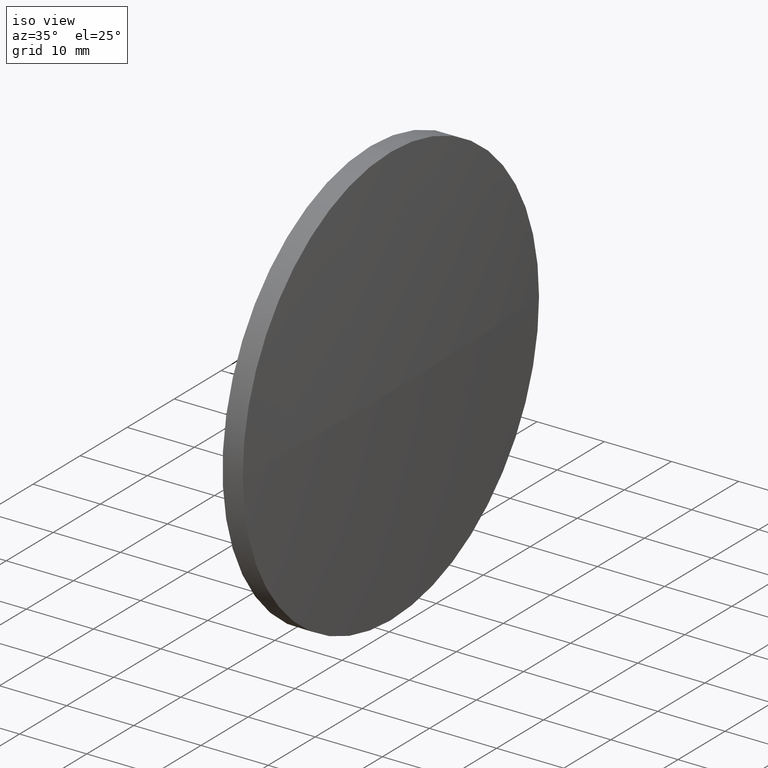
[diagram: clean part render]
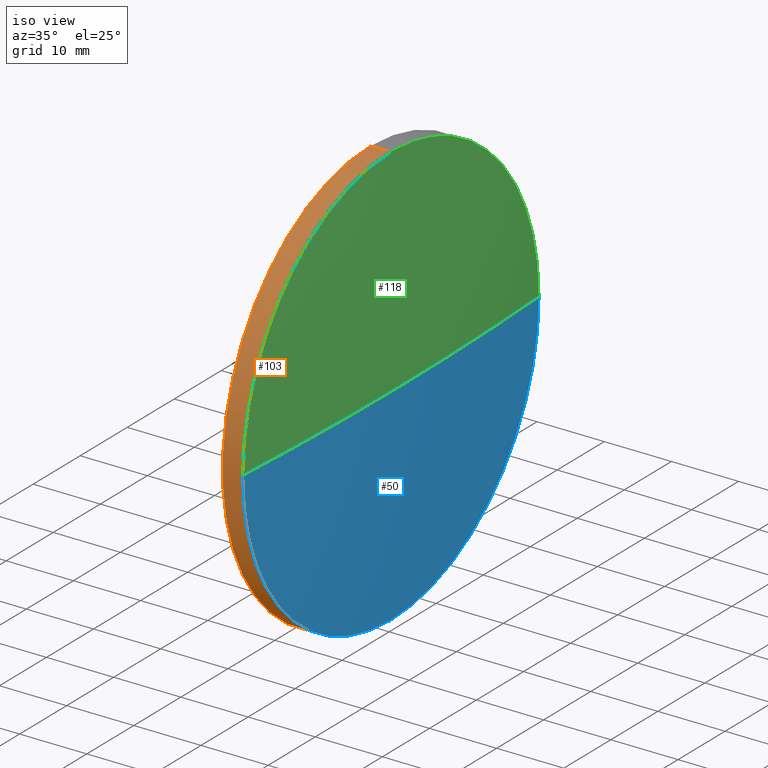
[diagram: same view with three faces highlighted in distinct colors, each labeled with its STEP entity id]
A machine part, iso view with three faces highlighted in distinct colors.
Their STEP definitions:

[orange] entity #103 — the highlighted cylindrical surface (partial cylindrical patch) has radius 31.5 mm, axis along (-1, -0, -0).
#2 = EDGE_CURVE ( 'NONE', #35, #17, #63, .T. ) ;
#6 = ORIENTED_EDGE ( 'NONE', *, *, #168, .F. ) ;
#11 = LINE ( 'NONE', #47, #14 ) ;
#14 = VECTOR ( 'NONE', #99, 1000.000000000000000 ) ;
#16 = DIRECTION ( 'NONE',  ( -1.000000000000000000, -0.0000000000000000000, -0.0000000000000000000 ) ) ;
#17 = VERTEX_POINT ( 'NONE', #80 ) ;
#22 = LINE ( 'NONE', #177, #171 ) ;
#26 = DIRECTION ( 'NONE',  ( -1.000000000000000000, -0.0000000000000000000, -0.0000000000000000000 ) ) ;
#31 = ORIENTED_EDGE ( 'NONE', *, *, #2, .F. ) ;
#35 = VERTEX_POINT ( 'NONE', #61 ) ;
#41 = CARTESIAN_POINT ( 'NONE',  ( 229.8933010013870400, 130.5185814569561000, 31.50000000000000000 ) ) ;
#47 = CARTESIAN_POINT ( 'NONE',  ( 218.1236667371545400, 130.5185814569561000, -31.50000000000000000 ) ) ;
#55 = AXIS2_PLACEMENT_3D ( 'NONE', #148, #182, #128 ) ;
#57 = ORIENTED_EDGE ( 'NONE', *, *, #156, .T. ) ;
#58 = AXIS2_PLACEMENT_3D ( 'NONE', #66, #16, #74 ) ;
#59 = CARTESIAN_POINT ( 'NONE',  ( 226.8933010013870400, 130.5185814569561000, 0.0000000000000000000 ) ) ;
#61 = CARTESIAN_POINT ( 'NONE',  ( 226.8933010013870400, 130.5185814569561000, -31.50000000000000000 ) ) ;
#63 = CIRCLE ( 'NONE', #71, 31.50000000000000000 ) ;
#66 = CARTESIAN_POINT ( 'NONE',  ( 229.8933010013870400, 130.5185814569561000, 0.0000000000000000000 ) ) ;
#70 = CIRCLE ( 'NONE', #58, 31.50000000000000000 ) ;
#71 = AXIS2_PLACEMENT_3D ( 'NONE', #59, #26, #90 ) ;
#73 = ORIENTED_EDGE ( 'NONE', *, *, #181, .T. ) ;
#74 = DIRECTION ( 'NONE',  ( 0.0000000000000000000, 0.0000000000000000000, 1.000000000000000000 ) ) ;
#76 = DIRECTION ( 'NONE',  ( -1.000000000000000000, -0.0000000000000000000, -0.0000000000000000000 ) ) ;
#80 = CARTESIAN_POINT ( 'NONE',  ( 226.8933010013870400, 130.5185814569561000, 31.50000000000000000 ) ) ;
#82 = VERTEX_POINT ( 'NONE', #41 ) ;
#84 = CARTESIAN_POINT ( 'NONE',  ( 229.8933010013870400, 99.01858145695655400, 0.0000000000000000000 ) ) ;
#85 = EDGE_CURVE ( 'NONE', #82, #17, #22, .T. ) ;
#88 = CIRCLE ( 'NONE', #136, 31.50000000000000000 ) ;
#90 = DIRECTION ( 'NONE',  ( 0.0000000000000000000, 0.0000000000000000000, 1.000000000000000000 ) ) ;
#96 = CARTESIAN_POINT ( 'NONE',  ( 229.8933010013870400, 130.5185814569561000, -31.50000000000000000 ) ) ;
#98 = CARTESIAN_POINT ( 'NONE',  ( 229.8933010013870400, 130.5185814569561000, 0.0000000000000000000 ) ) ;
#99 = DIRECTION ( 'NONE',  ( -1.000000000000000000, -0.0000000000000000000, -0.0000000000000000000 ) ) ;
#101 = VERTEX_POINT ( 'NONE', #96 ) ;
#103 = ADVANCED_FACE ( 'NONE', ( #173 ), #165, .T. ) ;
#128 = DIRECTION ( 'NONE',  ( 0.0000000000000000000, 0.0000000000000000000, 1.000000000000000000 ) ) ;
#135 = ORIENTED_EDGE ( 'NONE', *, *, #85, .T. ) ;
#136 = AXIS2_PLACEMENT_3D ( 'NONE', #98, #76, #180 ) ;
#148 = CARTESIAN_POINT ( 'NONE',  ( 218.1236667371545400, 130.5185814569561000, 0.0000000000000000000 ) ) ;
#149 = VERTEX_POINT ( 'NONE', #84 ) ;
#156 = EDGE_CURVE ( 'NONE', #101, #149, #70, .T. ) ;
#161 = DIRECTION ( 'NONE',  ( -1.000000000000000000, -0.0000000000000000000, -0.0000000000000000000 ) ) ;
#164 = EDGE_LOOP ( 'NONE', ( #6, #57, #73, #135, #31 ) ) ;
#165 = CYLINDRICAL_SURFACE ( 'NONE', #55, 31.50000000000000000 ) ;
#168 = EDGE_CURVE ( 'NONE', #101, #35, #11, .T. ) ;
#171 = VECTOR ( 'NONE', #161, 1000.000000000000000 ) ;
#173 = FACE_OUTER_BOUND ( 'NONE', #164, .T. ) ;
#177 = CARTESIAN_POINT ( 'NONE',  ( 218.1236667371545400, 130.5185814569561000, 31.50000000000000000 ) ) ;
#180 = DIRECTION ( 'NONE',  ( 0.0000000000000000000, 0.0000000000000000000, 1.000000000000000000 ) ) ;
#181 = EDGE_CURVE ( 'NONE', #149, #82, #88, .T. ) ;
#182 = DIRECTION ( 'NONE',  ( -1.000000000000000000, -0.0000000000000000000, -0.0000000000000000000 ) ) ;

[blue] entity #50 — the highlighted spherical surface has radius 517.277 mm.
#3 = CARTESIAN_POINT ( 'NONE',  ( -286.4235739986086200, 130.5185814569565500, 0.0000000000000000000 ) ) ;
#4 = ORIENTED_EDGE ( 'NONE', *, *, #170, .F. ) ;
#13 = DIRECTION ( 'NONE',  ( 0.0000000000000000000, 0.0000000000000000000, 1.000000000000000000 ) ) ;
#16 = DIRECTION ( 'NONE',  ( -1.000000000000000000, -0.0000000000000000000, -0.0000000000000000000 ) ) ;
#18 = DIRECTION ( 'NONE',  ( -1.000000000000000000, -0.0000000000000000000, -0.0000000000000000000 ) ) ;
#19 = EDGE_CURVE ( 'NONE', #186, #34, #21, .T. ) ;
#21 = CIRCLE ( 'NONE', #175, 517.2768749999955800 ) ;
#25 = AXIS2_PLACEMENT_3D ( 'NONE', #64, #18, #147 ) ;
#28 = AXIS2_PLACEMENT_3D ( 'NONE', #140, #13, #43 ) ;
#34 = VERTEX_POINT ( 'NONE', #92 ) ;
#36 = AXIS2_PLACEMENT_3D ( 'NONE', #109, #121, #42 ) ;
#40 = CIRCLE ( 'NONE', #25, 31.50000000000000000 ) ;
#42 = DIRECTION ( 'NONE',  ( -1.000000000000000000, 0.0000000000000000000, 0.0000000000000000000 ) ) ;
#43 = DIRECTION ( 'NONE',  ( 0.0000000000000000000, -1.000000000000000000, 0.0000000000000000000 ) ) ;
#44 = ORIENTED_EDGE ( 'NONE', *, *, #19, .F. ) ;
#48 = CARTESIAN_POINT ( 'NONE',  ( 230.8533010013870200, 130.5185814569565300, 0.0000000000000000000 ) ) ;
#50 = ADVANCED_FACE ( 'NONE', ( #146 ), #95, .T. ) ;
#52 = EDGE_CURVE ( 'NONE', #186, #149, #53, .T. ) ;
#53 = CIRCLE ( 'NONE', #36, 517.2768749999955800 ) ;
#58 = AXIS2_PLACEMENT_3D ( 'NONE', #66, #16, #74 ) ;
#64 = CARTESIAN_POINT ( 'NONE',  ( 229.8933010013870400, 130.5185814569561000, 0.0000000000000000000 ) ) ;
#66 = CARTESIAN_POINT ( 'NONE',  ( 229.8933010013870400, 130.5185814569561000, 0.0000000000000000000 ) ) ;
#70 = CIRCLE ( 'NONE', #58, 31.50000000000000000 ) ;
#74 = DIRECTION ( 'NONE',  ( 0.0000000000000000000, 0.0000000000000000000, 1.000000000000000000 ) ) ;
#78 = EDGE_LOOP ( 'NONE', ( #44, #183, #126, #4 ) ) ;
#84 = CARTESIAN_POINT ( 'NONE',  ( 229.8933010013870400, 99.01858145695655400, 0.0000000000000000000 ) ) ;
#92 = CARTESIAN_POINT ( 'NONE',  ( 229.8933010013870400, 162.0185814569561000, 3.857637417314109000E-015 ) ) ;
#95 = SPHERICAL_SURFACE ( 'NONE', #28, 517.2768749999955800 ) ;
#96 = CARTESIAN_POINT ( 'NONE',  ( 229.8933010013870400, 130.5185814569561000, -31.50000000000000000 ) ) ;
#101 = VERTEX_POINT ( 'NONE', #96 ) ;
#109 = CARTESIAN_POINT ( 'NONE',  ( -286.4235739986086200, 130.5185814569565500, 0.0000000000000000000 ) ) ;
#120 = DIRECTION ( 'NONE',  ( 0.0000000000000000000, -1.224646799147353200E-016, 1.000000000000000000 ) ) ;
#121 = DIRECTION ( 'NONE',  ( 0.0000000000000000000, 0.0000000000000000000, -1.000000000000000000 ) ) ;
#126 = ORIENTED_EDGE ( 'NONE', *, *, #156, .F. ) ;
#140 = CARTESIAN_POINT ( 'NONE',  ( -286.4235739986086200, 130.5185814569565500, 0.0000000000000000000 ) ) ;
#146 = FACE_OUTER_BOUND ( 'NONE', #78, .T. ) ;
#147 = DIRECTION ( 'NONE',  ( 0.0000000000000000000, 0.0000000000000000000, 1.000000000000000000 ) ) ;
#149 = VERTEX_POINT ( 'NONE', #84 ) ;
#156 = EDGE_CURVE ( 'NONE', #101, #149, #70, .T. ) ;
#158 = DIRECTION ( 'NONE',  ( 0.0000000000000000000, -1.000000000000000000, -1.224646799147353500E-016 ) ) ;
#170 = EDGE_CURVE ( 'NONE', #34, #101, #40, .T. ) ;
#175 = AXIS2_PLACEMENT_3D ( 'NONE', #3, #120, #158 ) ;
#183 = ORIENTED_EDGE ( 'NONE', *, *, #52, .T. ) ;
#186 = VERTEX_POINT ( 'NONE', #48 ) ;

[green] entity #118 — the highlighted spherical surface has radius 517.277 mm.
#3 = CARTESIAN_POINT ( 'NONE',  ( -286.4235739986086200, 130.5185814569565500, 0.0000000000000000000 ) ) ;
#8 = ORIENTED_EDGE ( 'NONE', *, *, #60, .F. ) ;
#12 = DIRECTION ( 'NONE',  ( -1.000000000000000000, -0.0000000000000000000, -0.0000000000000000000 ) ) ;
#19 = EDGE_CURVE ( 'NONE', #186, #34, #21, .T. ) ;
#21 = CIRCLE ( 'NONE', #175, 517.2768749999955800 ) ;
#23 = FACE_OUTER_BOUND ( 'NONE', #137, .T. ) ;
#24 = ORIENTED_EDGE ( 'NONE', *, *, #19, .T. ) ;
#34 = VERTEX_POINT ( 'NONE', #92 ) ;
#36 = AXIS2_PLACEMENT_3D ( 'NONE', #109, #121, #42 ) ;
#41 = CARTESIAN_POINT ( 'NONE',  ( 229.8933010013870400, 130.5185814569561000, 31.50000000000000000 ) ) ;
#42 = DIRECTION ( 'NONE',  ( -1.000000000000000000, 0.0000000000000000000, 0.0000000000000000000 ) ) ;
#48 = CARTESIAN_POINT ( 'NONE',  ( 230.8533010013870200, 130.5185814569565300, 0.0000000000000000000 ) ) ;
#52 = EDGE_CURVE ( 'NONE', #186, #149, #53, .T. ) ;
#53 = CIRCLE ( 'NONE', #36, 517.2768749999955800 ) ;
#56 = AXIS2_PLACEMENT_3D ( 'NONE', #123, #12, #79 ) ;
#60 = EDGE_CURVE ( 'NONE', #82, #34, #172, .T. ) ;
#65 = DIRECTION ( 'NONE',  ( 0.0000000000000000000, -1.000000000000000000, 0.0000000000000000000 ) ) ;
#76 = DIRECTION ( 'NONE',  ( -1.000000000000000000, -0.0000000000000000000, -0.0000000000000000000 ) ) ;
#79 = DIRECTION ( 'NONE',  ( 0.0000000000000000000, 0.0000000000000000000, 1.000000000000000000 ) ) ;
#82 = VERTEX_POINT ( 'NONE', #41 ) ;
#84 = CARTESIAN_POINT ( 'NONE',  ( 229.8933010013870400, 99.01858145695655400, 0.0000000000000000000 ) ) ;
#88 = CIRCLE ( 'NONE', #136, 31.50000000000000000 ) ;
#92 = CARTESIAN_POINT ( 'NONE',  ( 229.8933010013870400, 162.0185814569561000, 3.857637417314109000E-015 ) ) ;
#98 = CARTESIAN_POINT ( 'NONE',  ( 229.8933010013870400, 130.5185814569561000, 0.0000000000000000000 ) ) ;
#109 = CARTESIAN_POINT ( 'NONE',  ( -286.4235739986086200, 130.5185814569565500, 0.0000000000000000000 ) ) ;
#113 = SPHERICAL_SURFACE ( 'NONE', #162, 517.2768749999955800 ) ;
#118 = ADVANCED_FACE ( 'NONE', ( #23 ), #113, .T. ) ;
#119 = ORIENTED_EDGE ( 'NONE', *, *, #52, .F. ) ;
#120 = DIRECTION ( 'NONE',  ( 0.0000000000000000000, -1.224646799147353200E-016, 1.000000000000000000 ) ) ;
#121 = DIRECTION ( 'NONE',  ( 0.0000000000000000000, 0.0000000000000000000, -1.000000000000000000 ) ) ;
#123 = CARTESIAN_POINT ( 'NONE',  ( 229.8933010013870400, 130.5185814569561000, 0.0000000000000000000 ) ) ;
#134 = ORIENTED_EDGE ( 'NONE', *, *, #181, .F. ) ;
#136 = AXIS2_PLACEMENT_3D ( 'NONE', #98, #76, #180 ) ;
#137 = EDGE_LOOP ( 'NONE', ( #119, #24, #8, #134 ) ) ;
#149 = VERTEX_POINT ( 'NONE', #84 ) ;
#150 = CARTESIAN_POINT ( 'NONE',  ( -286.4235739986086200, 130.5185814569565500, 0.0000000000000000000 ) ) ;
#158 = DIRECTION ( 'NONE',  ( 0.0000000000000000000, -1.000000000000000000, -1.224646799147353500E-016 ) ) ;
#162 = AXIS2_PLACEMENT_3D ( 'NONE', #150, #163, #65 ) ;
#163 = DIRECTION ( 'NONE',  ( 0.0000000000000000000, 0.0000000000000000000, 1.000000000000000000 ) ) ;
#172 = CIRCLE ( 'NONE', #56, 31.50000000000000000 ) ;
#175 = AXIS2_PLACEMENT_3D ( 'NONE', #3, #120, #158 ) ;
#180 = DIRECTION ( 'NONE',  ( 0.0000000000000000000, 0.0000000000000000000, 1.000000000000000000 ) ) ;
#181 = EDGE_CURVE ( 'NONE', #149, #82, #88, .T. ) ;
#186 = VERTEX_POINT ( 'NONE', #48 ) ;